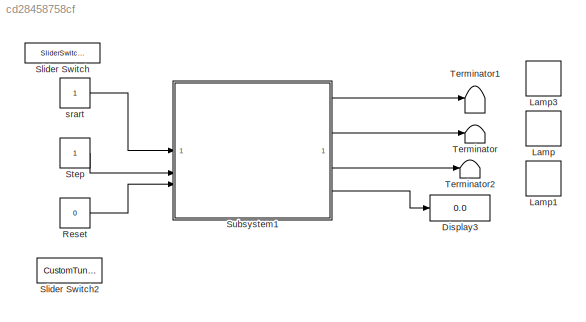
MODEL slx_cd28458758cf
KIND model
CONFIG AbsTol = auto
CONFIG EnableMultiTasking = off
CONFIG FixedStep = 1
CONFIG MaxStep = 1
CONFIG MinStep = auto
CONFIG RelTol = 1e-3
CONFIG SampleTimeConstraint = Unconstrained
CONFIG SolverName = FixedStepDiscrete
CONFIG StartTime = 0.0
CONFIG StopTime = inf
BLOCK [Display] Display3
  Decimation = 1
BLOCK [CustomWebBlock] Lamp
  Configuration = {"components":[{"name":"BackgroundImageComponent","settings":{"image":{"size":[150,150],"src":"data:image\/svg+xml;base64,PHN2ZyB4bWxucz0iaHR0cDovL3d3dy53My5vcmcvMjAwMC9zdmciIHhtbG5zOnhsaW5rPSJodHRwOi8vd3d3LnczLm9yZy8xOTk5L3hsaW5rIiB2aWV3Qm94PSIwIDAgNTAwIDUwMCI+PGRlZnM+PHN0eWxlPi5he2ZpbGw6dXJsKCNhKTt9LmJ7ZmlsbDp1cmwoI2IpO30uY3tmaWxsOnVybCgjYyk7fTwvc3R5bGU+PHJhZGlhbEdyYWRpZW50IGlkPSJhIiBjeD0iMjgzLj...<+21337ch>
  LabelPosition = Hide
  ShowInitialText = on
BLOCK [CustomWebBlock] Lamp1
  Configuration = {"components":[{"name":"BackgroundImageComponent","settings":{"image":{"size":[150,150],"src":"data:image\/svg+xml;base64,PHN2ZyB4bWxucz0iaHR0cDovL3d3dy53My5vcmcvMjAwMC9zdmciIHhtbG5zOnhsaW5rPSJodHRwOi8vd3d3LnczLm9yZy8xOTk5L3hsaW5rIiB2aWV3Qm94PSIwIDAgNTAwIDUwMCI+PGRlZnM+PHN0eWxlPi5he2ZpbGw6dXJsKCNhKTt9LmJ7ZmlsbDp1cmwoI2IpO30uY3tmaWxsOnVybCgjYyk7fTwvc3R5bGU+PHJhZGlhbEdyYWRpZW50IGlkPSJhIiBjeD0iMjgzLj...<+21371ch>
  LabelPosition = Hide
  ShowInitialText = on
BLOCK [CustomWebBlock] Lamp3
  Configuration = {"components":[{"name":"BackgroundImageComponent","settings":{"image":{"size":[150,150],"src":"data:image\/svg+xml;base64,PHN2ZyB4bWxucz0iaHR0cDovL3d3dy53My5vcmcvMjAwMC9zdmciIHhtbG5zOnhsaW5rPSJodHRwOi8vd3d3LnczLm9yZy8xOTk5L3hsaW5rIiB2aWV3Qm94PSIwIDAgNTAwIDUwMCI+PGRlZnM+PHN0eWxlPi5he2ZpbGw6dXJsKCNhKTt9LmJ7ZmlsbDp1cmwoI2IpO30uY3tmaWxsOnVybCgjYyk7fTwvc3R5bGU+PHJhZGlhbEdyYWRpZW50IGlkPSJhIiBjeD0iMjgzLj...<+21372ch>
  LabelPosition = Hide
  ShowInitialText = on
BLOCK [Constant] Reset
  Value = 0
BLOCK [SliderSwitchBlock] Slider Switch
BLOCK [CustomTuningWebBlock] Slider Switch2
  Configuration = {"type":"Switch","settings":{"BindingType":"param","backgroundColor":[0,0,255,"1"],"backgroundOffset":0.14,"fixedAspectRatio":"on","foregroundColor":[234,234,234],"showBackgroundColor":false,"variant":"slider"},"components":[{"name":"CustomSwitchStateComponent","settings":{"position":[0,0,1,1],"states":[{"HitRegion":{"position":[0,0,0.5,1]},"Image":{"position":[0,0,1,1],"size":[1,1],"src":"data:im...<+12659ch>
  LabelPosition = Hide
  ShowInitialText = on
BLOCK [Constant] Step
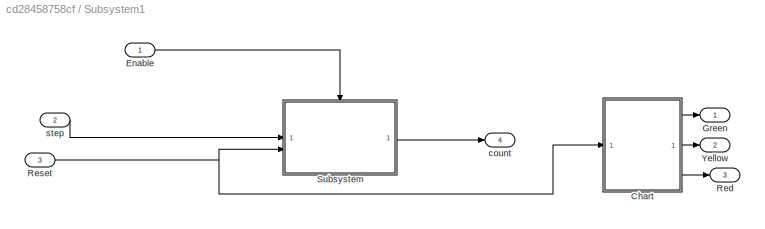
BLOCK [SubSystem] Subsystem1
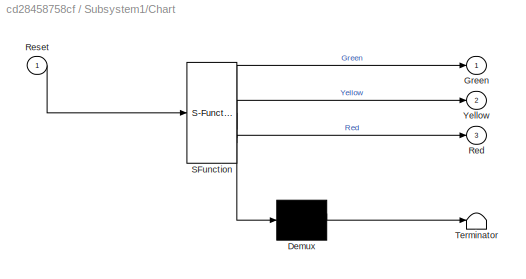
BLOCK [SubSystem] Subsystem1/Chart
  ErrorFcn = Stateflow.Translate.translate
  PermitHierarchicalResolution = ExplicitOnly
  SFBlockType = Chart
  TreatAsAtomicUnit = on
BLOCK [Demux] Subsystem1/Chart/ Demux 
  Outputs = 1
BLOCK [S-Function] Subsystem1/Chart/ SFunction 
  EnableBusSupport = on
  FunctionName = sf_sfun
  PortCounts = [1 4]
  SFcnIsStateOwnerBlock = off
  SFunctionDeploymentMode = off
  Tag = Stateflow S-Function 3
BLOCK [Terminator] Subsystem1/Chart/ Terminator 
BLOCK [Outport] Subsystem1/Chart/Green
BLOCK [Outport] Subsystem1/Chart/Red
  Port = 3
BLOCK [Inport] Subsystem1/Chart/Reset
BLOCK [Outport] Subsystem1/Chart/Yellow
  Port = 2
BLOCK [Inport] Subsystem1/Enable
BLOCK [Outport] Subsystem1/Green
BLOCK [Outport] Subsystem1/Red
  Port = 3
BLOCK [Inport] Subsystem1/Reset
  Port = 3
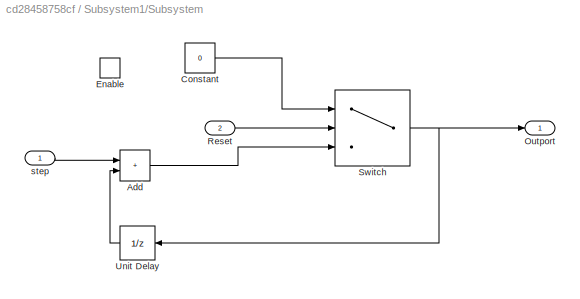
BLOCK [SubSystem] Subsystem1/Subsystem
BLOCK [Sum] Subsystem1/Subsystem/Add
  IconShape = rectangular
BLOCK [Constant] Subsystem1/Subsystem/Constant
  Value = 0
BLOCK [EnablePort] Subsystem1/Subsystem/Enable
BLOCK [Outport] Subsystem1/Subsystem/Outport
BLOCK [Inport] Subsystem1/Subsystem/Reset
  Port = 2
BLOCK [Switch] Subsystem1/Subsystem/Switch
  Criteria = u2 ~= 0
  InputSameDT = off
  SaturateOnIntegerOverflow = off
BLOCK [UnitDelay] Subsystem1/Subsystem/Unit Delay
  AttributesFormatString = InitialCondition=0
  HasFrameUpgradeWarning = on
  SampleTime = -1
BLOCK [Inport] Subsystem1/Subsystem/step
BLOCK [Outport] Subsystem1/Yellow
  Port = 2
BLOCK [Outport] Subsystem1/count
  Port = 4
BLOCK [Inport] Subsystem1/step
  Port = 2
BLOCK [Terminator] Terminator
BLOCK [Terminator] Terminator1
BLOCK [Terminator] Terminator2
BLOCK [Constant] srart
LINE Reset:1 -> Subsystem1:3
LINE Step:1 -> Subsystem1:2
LINE Subsystem1/Chart:1 -> Subsystem1/Green:1
LINE Subsystem1/Chart:2 -> Subsystem1/Yellow:1
LINE Subsystem1/Chart:3 -> Subsystem1/Red:1
LINE Subsystem1/Enable:1 -> Subsystem1/Subsystem:enable
NET Subsystem1/Reset:1 -> Subsystem1/Chart:1, Subsystem1/Subsystem:2
LINE Subsystem1/Subsystem/Add:1 -> Subsystem1/Subsystem/Switch:3
LINE Subsystem1/Subsystem/Constant:1 -> Subsystem1/Subsystem/Switch:1
LINE Subsystem1/Subsystem/Reset:1 -> Subsystem1/Subsystem/Switch:2
NET Subsystem1/Subsystem/Switch:1 -> Subsystem1/Subsystem/Outport:1, Subsystem1/Subsystem/Unit Delay:1
LINE Subsystem1/Subsystem/Unit Delay:1 -> Subsystem1/Subsystem/Add:2
LINE Subsystem1/Subsystem/step:1 -> Subsystem1/Subsystem/Add:1
LINE Subsystem1/Subsystem:1 -> Subsystem1/count:1
LINE Subsystem1/step:1 -> Subsystem1/Subsystem:1
LINE Subsystem1:1 -> Terminator1:1
LINE Subsystem1:2 -> Terminator:1
LINE Subsystem1:3 -> Terminator2:1
LINE Subsystem1:4 -> Display3:1
LINE srart:1 -> Subsystem1:1
note: NET lines group one-source signal fan-out (src -> all destinations, sorted); 1:1 wires keep LINE
CHART Subsystem1/Chart states=4 transitions=13
  STATE_LABEL 'LED_Yellow\nentry:\nYellow=1;\nexit:\nYellow=0;'
  STATE_LABEL 'LED_Red\nentry:\nRed=1;\nexit:\nRed=0;\n'
  STATE_LABEL 'LED_Green\nentry:\nGreen=1;\nexit:\nGreen=0;\n'
  STATE_LABEL 'on\nentry:\nRed=0;\nYellow=0;\nGreen=0;\n'
CHART  states=0 transitions=0
